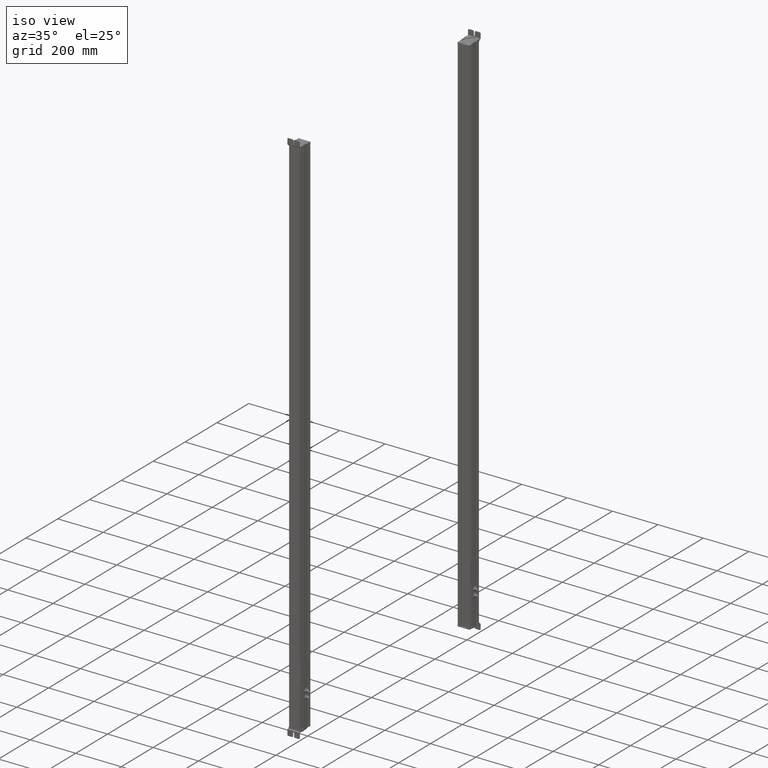
[diagram: clean part render]
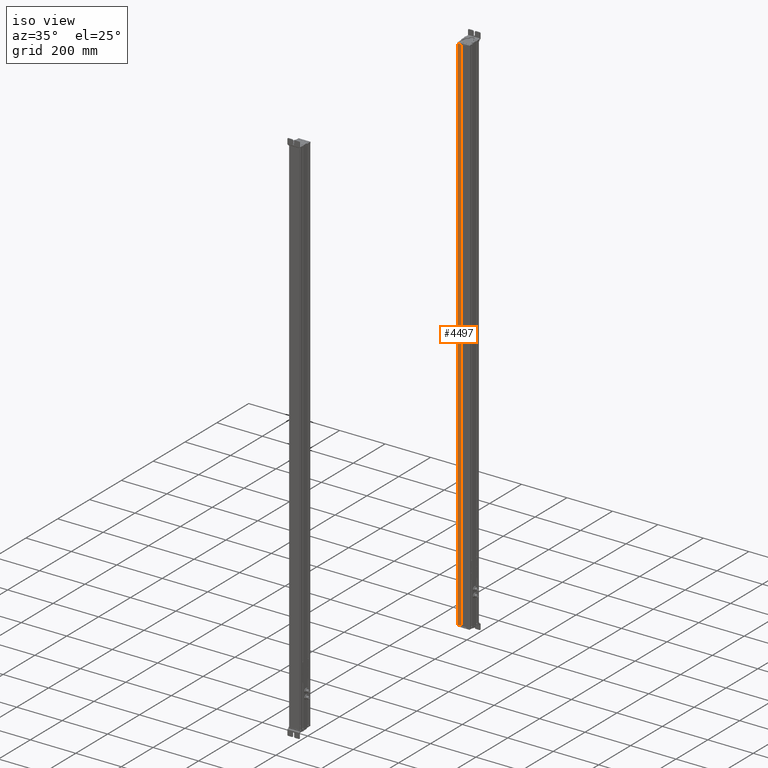
[diagram: same view with one face highlighted and labeled with its STEP entity id]
A machine part, iso view. The second image highlights one B-rep face of the part: STEP entity #4497.
In plain terms, the highlighted planar face has unit normal (0, -1, 0).
Its self-contained STEP definition (entity closure, byte-faithful):
#598=CARTESIAN_POINT('Axis2P3D Location',(664.195883662,182.060203323,0.)) ;
#4450=CARTESIAN_POINT('Vertex',(664.195883661,182.060203323,0.)) ;
#4453=CARTESIAN_POINT('Line Origine',(664.195883661,182.060203323,1156.)) ;
#4457=CARTESIAN_POINT('Vertex',(664.195883661,182.060203323,2312.)) ;
#4472=CARTESIAN_POINT('Line Origine',(657.845883661,182.060203323,0.)) ;
#4476=CARTESIAN_POINT('Vertex',(651.495883661,182.060203323,0.)) ;
#4479=CARTESIAN_POINT('Line Origine',(651.495883661,182.060203323,1156.)) ;
#4483=CARTESIAN_POINT('Vertex',(651.495883661,182.060203323,2312.)) ;
#4486=CARTESIAN_POINT('Line Origine',(657.845883661,182.060203323,2312.)) ;
#599=DIRECTION('Axis2P3D Direction',(0.,1.,-0.)) ;
#600=DIRECTION('Axis2P3D XDirection',(-1.,0.,0.)) ;
#4454=DIRECTION('Vector Direction',(0.,0.,1.)) ;
#4473=DIRECTION('Vector Direction',(-1.,0.,0.)) ;
#4480=DIRECTION('Vector Direction',(0.,0.,1.)) ;
#4487=DIRECTION('Vector Direction',(-1.,0.,0.)) ;
#601=AXIS2_PLACEMENT_3D('Plane Axis2P3D',#598,#599,#600) ;
#4492=ORIENTED_EDGE('',*,*,#4459,.F.) ;
#4493=ORIENTED_EDGE('',*,*,#4478,.T.) ;
#4494=ORIENTED_EDGE('',*,*,#4485,.T.) ;
#4495=ORIENTED_EDGE('',*,*,#4490,.F.) ;
#4455=VECTOR('Line Direction',#4454,1.) ;
#4474=VECTOR('Line Direction',#4473,1.) ;
#4481=VECTOR('Line Direction',#4480,1.) ;
#4488=VECTOR('Line Direction',#4487,1.) ;
#4497=ADVANCED_FACE('Body.2',(#4496),#602,.T.) ;
#4459=EDGE_CURVE('',#4451,#4458,#4456,.T.) ;
#4478=EDGE_CURVE('',#4451,#4477,#4475,.T.) ;
#4485=EDGE_CURVE('',#4477,#4484,#4482,.T.) ;
#4490=EDGE_CURVE('',#4458,#4484,#4489,.T.) ;
#4491=EDGE_LOOP('',(#4492,#4493,#4494,#4495)) ;
#4496=FACE_OUTER_BOUND('',#4491,.T.) ;
#4456=LINE('Line',#4453,#4455) ;
#4475=LINE('Line',#4472,#4474) ;
#4482=LINE('Line',#4479,#4481) ;
#4489=LINE('Line',#4486,#4488) ;
#602=PLANE('Plane',#601) ;
#4451=VERTEX_POINT('',#4450) ;
#4458=VERTEX_POINT('',#4457) ;
#4477=VERTEX_POINT('',#4476) ;
#4484=VERTEX_POINT('',#4483) ;